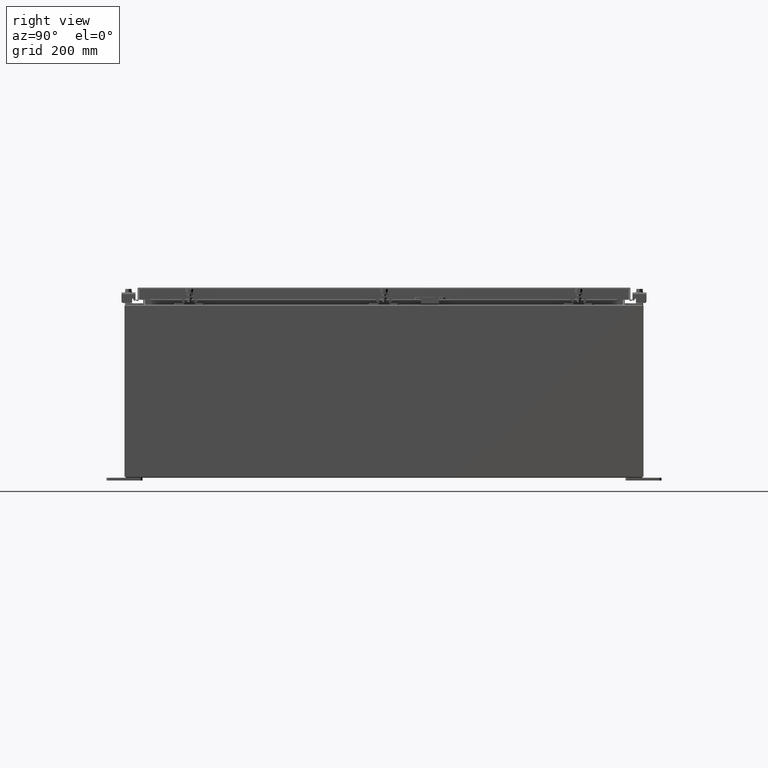
[diagram: clean part render]
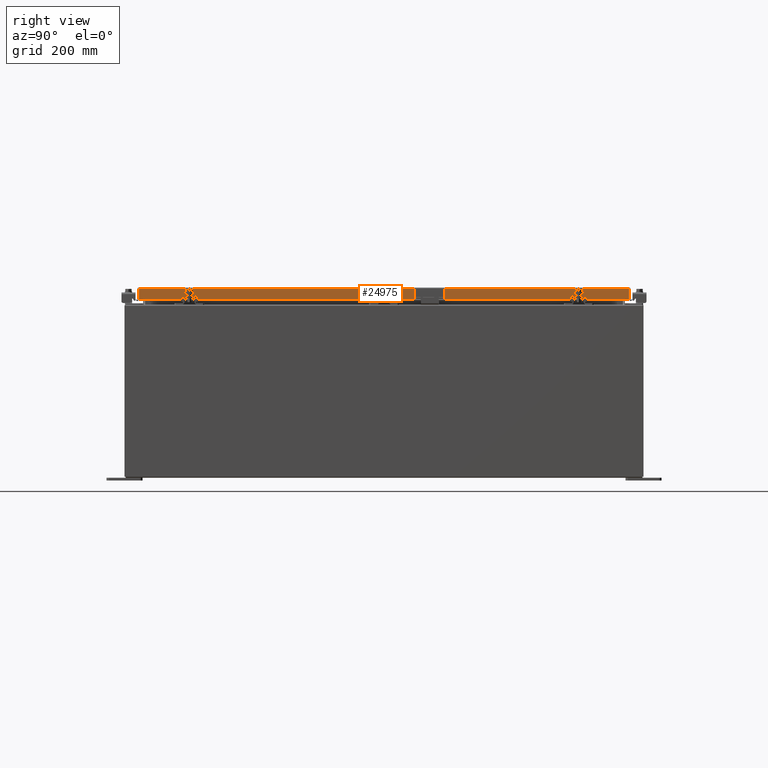
[diagram: same view with one face highlighted and labeled with its STEP entity id]
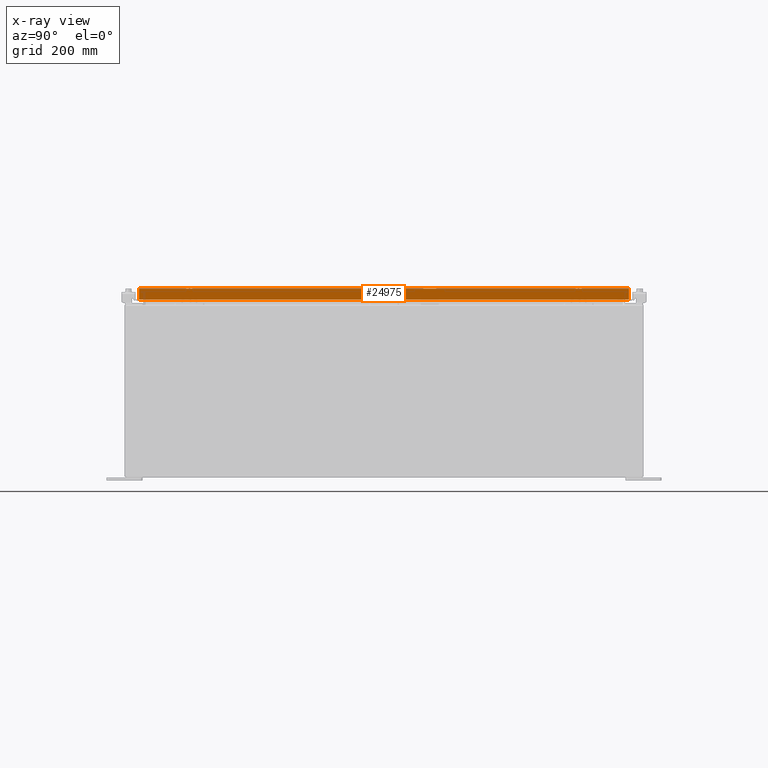
[diagram: x-ray of the same camera — body ghosted, the highlighted face saturated]
A machine part, right view. The second image highlights one B-rep face of the part: STEP entity #24975.
The next image is the same camera in x-ray: the body ghosted, the highlighted face saturated — about 0% of this face is hidden behind the body in this view.
In plain terms, the highlighted planar face has unit normal (1, 0, 0).
Its self-contained STEP definition (entity closure, byte-faithful):
#57 = CARTESIAN_POINT ( 'NONE',  ( 14.07799999999998700, 16.25515786437628000, -0.8500000000000016400 ) ) ;
#202 = VERTEX_POINT ( 'NONE', #8369 ) ;
#1390 = ORIENTED_EDGE ( 'NONE', *, *, #11084, .T. ) ;
#1562 = VERTEX_POINT ( 'NONE', #43290 ) ;
#3159 = VERTEX_POINT ( 'NONE', #5989 ) ;
#3302 = DIRECTION ( 'NONE',  ( 1.000000000000000000, 0.0000000000000000000, 2.818880942772360100E-015 ) ) ;
#3946 = CARTESIAN_POINT ( 'NONE',  ( 14.07799999999999400, 17.00515786437626900, -0.08770000000000007000 ) ) ;
#5389 = ORIENTED_EDGE ( 'NONE', *, *, #29901, .F. ) ;
#5989 = CARTESIAN_POINT ( 'NONE',  ( 14.07799999999999600, -17.00515786437626500, -0.8499999999999996400 ) ) ;
#6833 = VECTOR ( 'NONE', #28395, 39.37007874015748100 ) ;
#7168 = ORIENTED_EDGE ( 'NONE', *, *, #30580, .F. ) ;
#7262 = FACE_OUTER_BOUND ( 'NONE', #32758, .T. ) ;
#8369 = CARTESIAN_POINT ( 'NONE',  ( 14.07799999999999400, -17.00515786437626900, -0.08770000000000007000 ) ) ;
#9910 = LINE ( 'NONE', #31233, #43185 ) ;
#11084 = EDGE_CURVE ( 'NONE', #18718, #202, #31287, .T. ) ;
#12370 = VECTOR ( 'NONE', #26721, 39.37007874015748100 ) ;
#13403 = LINE ( 'NONE', #57, #12370 ) ;
#14726 = DIRECTION ( 'NONE',  ( -2.818880942772360500E-015, -6.982962677686269100E-015, 1.000000000000000000 ) ) ;
#17976 = VECTOR ( 'NONE', #40189, 39.37007874015748100 ) ;
#18718 = VERTEX_POINT ( 'NONE', #3946 ) ;
#20134 = EDGE_CURVE ( 'NONE', #1562, #18718, #9910, .T. ) ;
#20168 = ORIENTED_EDGE ( 'NONE', *, *, #38861, .F. ) ;
#22425 = VECTOR ( 'NONE', #41288, 39.37007874015748100 ) ;
#22730 = CARTESIAN_POINT ( 'NONE',  ( 14.07799999999998700, -16.25515786437626500, -0.8500000000000016400 ) ) ;
#23991 = VECTOR ( 'NONE', #34171, 39.37007874015748100 ) ;
#24975 = ADVANCED_FACE ( 'NONE', ( #7262 ), #43209, .T. ) ;
#26080 = LINE ( 'NONE', #37526, #23991 ) ;
#26274 = EDGE_CURVE ( 'NONE', #31076, #27951, #13403, .T. ) ;
#26555 = DIRECTION ( 'NONE',  ( 2.818880942772360100E-015, 0.0000000000000000000, -1.000000000000000000 ) ) ;
#26721 = DIRECTION ( 'NONE',  ( 0.0000000000000000000, -1.000000000000000000, 0.0000000000000000000 ) ) ;
#26801 = LINE ( 'NONE', #33612, #17976 ) ;
#27951 = VERTEX_POINT ( 'NONE', #22730 ) ;
#28395 = DIRECTION ( 'NONE',  ( 0.0000000000000000000, -1.000000000000000000, 0.0000000000000000000 ) ) ;
#29741 = CARTESIAN_POINT ( 'NONE',  ( 14.07799999999999400, 0.0000000000000000000, 3.994501956836084300E-014 ) ) ;
#29901 = EDGE_CURVE ( 'NONE', #27951, #3159, #26080, .T. ) ;
#30580 = EDGE_CURVE ( 'NONE', #1562, #31076, #32289, .T. ) ;
#31076 = VERTEX_POINT ( 'NONE', #34226 ) ;
#31233 = CARTESIAN_POINT ( 'NONE',  ( 14.07799999999999400, 17.00515786437627200, 1.586914022634635000E-013 ) ) ;
#31287 = LINE ( 'NONE', #42078, #22425 ) ;
#32289 = LINE ( 'NONE', #38490, #6833 ) ;
#32758 = EDGE_LOOP ( 'NONE', ( #20168, #5389, #42153, #7168, #38555, #1390 ) ) ;
#33612 = CARTESIAN_POINT ( 'NONE',  ( 14.07799999999999400, -17.00515786437626900, -0.07469999999999978000 ) ) ;
#34171 = DIRECTION ( 'NONE',  ( 0.0000000000000000000, -1.000000000000000000, 0.0000000000000000000 ) ) ;
#34226 = CARTESIAN_POINT ( 'NONE',  ( 14.07799999999998700, 16.25515786437627600, -0.8500000000000016400 ) ) ;
#34997 = AXIS2_PLACEMENT_3D ( 'NONE', #29741, #3302, #26555 ) ;
#37526 = CARTESIAN_POINT ( 'NONE',  ( 14.07799999999999600, -17.09400000000000100, -0.8499999999999996400 ) ) ;
#38490 = CARTESIAN_POINT ( 'NONE',  ( 14.07799999999999600, -17.09400000000000100, -0.8499999999999996400 ) ) ;
#38555 = ORIENTED_EDGE ( 'NONE', *, *, #20134, .T. ) ;
#38861 = EDGE_CURVE ( 'NONE', #3159, #202, #26801, .T. ) ;
#40189 = DIRECTION ( 'NONE',  ( -2.818880942772360500E-015, -6.982962677686269100E-015, 1.000000000000000000 ) ) ;
#41288 = DIRECTION ( 'NONE',  ( 0.0000000000000000000, -1.000000000000000000, 0.0000000000000000000 ) ) ;
#42078 = CARTESIAN_POINT ( 'NONE',  ( 14.07799999999999400, 0.0000000000000000000, -0.08770000000000007000 ) ) ;
#42153 = ORIENTED_EDGE ( 'NONE', *, *, #26274, .F. ) ;
#43185 = VECTOR ( 'NONE', #14726, 39.37007874015748100 ) ;
#43209 = PLANE ( 'NONE',  #34997 ) ;
#43290 = CARTESIAN_POINT ( 'NONE',  ( 14.07799999999999600, 17.00515786437627600, -0.8499999999999996400 ) ) ;